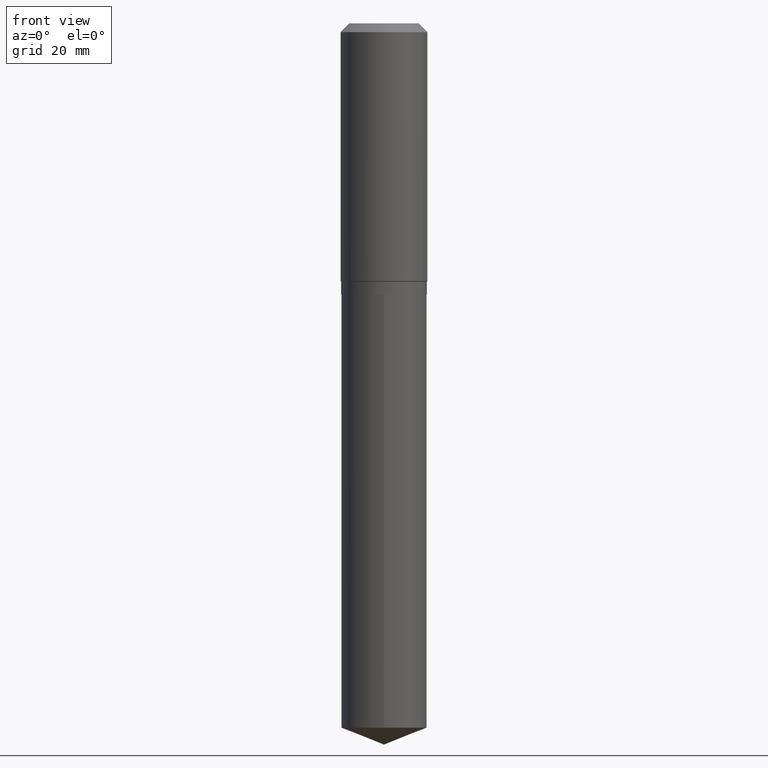
[diagram: clean part render]
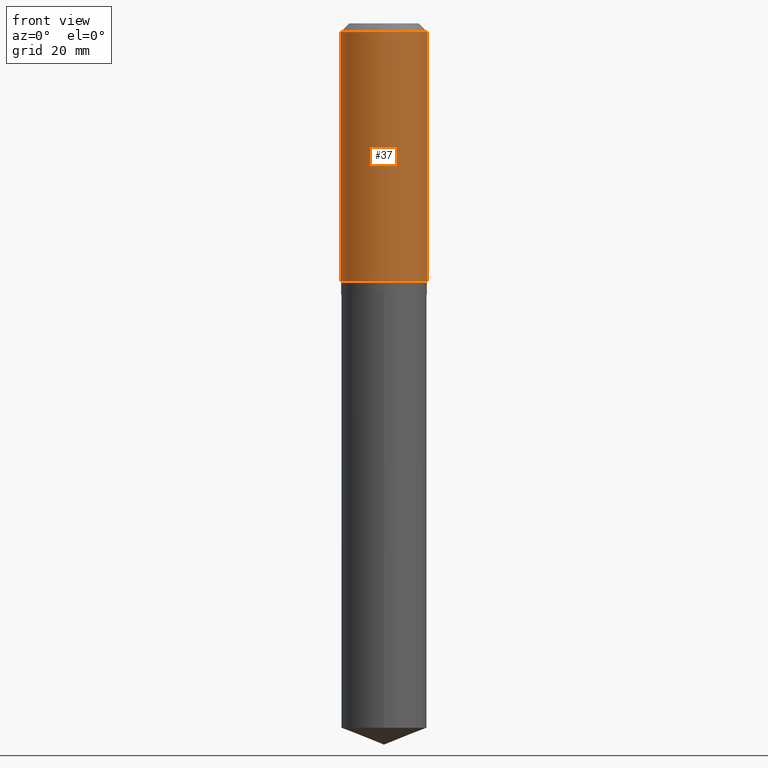
[diagram: same view with one face highlighted and labeled with its STEP entity id]
A machine part, front view. The second image highlights one B-rep face of the part: STEP entity #37.
In plain terms, the highlighted cylindrical surface (partial cylindrical patch) has radius 7.9997 mm, axis along (-0, 0, 1).
Its self-contained STEP definition (entity closure, byte-faithful):
#5 = LINE ( 'NONE', #118, #153 ) ;
#6 = DIRECTION ( 'NONE',  ( 1.000000000000000000, -6.982962677686264344E-15, 0.000000000000000000 ) ) ;
#32 = AXIS2_PLACEMENT_3D ( 'NONE', #427, #352, #171 ) ;
#37 = ADVANCED_FACE ( 'NONE', ( #310 ), #461, .T. ) ;
#49 = CARTESIAN_POINT ( 'NONE',  ( 0.000000000000000000, 0.000000000000000000, 0.000000000000000000 ) ) ;
#80 = DIRECTION ( 'NONE',  ( -2.445468806185136877E-29, 3.491481338843145188E-15, 1.000000000000000000 ) ) ;
#83 = CARTESIAN_POINT ( 'NONE',  ( 0.3149500000000002298, -8.731147384045044792E-15, -1.870799999999999352 ) ) ;
#97 = CARTESIAN_POINT ( 'NONE',  ( 0.3149500000000001743, -2.199284095337290660E-15, 1.535751875536930690E-29 ) ) ;
#112 = VECTOR ( 'NONE', #320, 39.37007874015748143 ) ;
#118 = CARTESIAN_POINT ( 'NONE',  ( -0.3149500000000001743, 2.237854346276436774E-15, -1.549218606675783237E-29 ) ) ;
#143 = ORIENTED_EDGE ( 'NONE', *, *, #416, .F. ) ;
#153 = VECTOR ( 'NONE', #80, 39.37007874015748143 ) ;
#171 = DIRECTION ( 'NONE',  ( 1.000000000000000000, -6.982962677686266711E-15, 0.000000000000000000 ) ) ;
#177 = LINE ( 'NONE', #97, #112 ) ;
#213 = DIRECTION ( 'NONE',  ( -2.445468806185136597E-29, 3.491481338843145583E-15, 1.000000000000000000 ) ) ;
#215 = ORIENTED_EDGE ( 'NONE', *, *, #422, .T. ) ;
#232 = DIRECTION ( 'NONE',  ( -2.445468806185136597E-29, 3.491481338843145583E-15, 1.000000000000000000 ) ) ;
#265 = VERTEX_POINT ( 'NONE', #334 ) ;
#266 = CARTESIAN_POINT ( 'NONE',  ( 4.574983042611151699E-29, -6.531863288707754922E-15, -1.870799999999999352 ) ) ;
#305 = EDGE_CURVE ( 'NONE', #265, #475, #354, .T. ) ;
#310 = FACE_OUTER_BOUND ( 'NONE', #356, .T. ) ;
#320 = DIRECTION ( 'NONE',  ( -2.445468806185136877E-29, 3.491481338843145188E-15, 1.000000000000000000 ) ) ;
#334 = CARTESIAN_POINT ( 'NONE',  ( -0.3149500000000002298, -4.294008942431317359E-15, -1.870799999999999352 ) ) ;
#340 = VERTEX_POINT ( 'NONE', #344 ) ;
#341 = CARTESIAN_POINT ( 'NONE',  ( -0.3149500000000000077, -1.138041502844306206E-15, -0.06299000000000036514 ) ) ;
#344 = CARTESIAN_POINT ( 'NONE',  ( 0.3149500000000000077, -2.419212504871020909E-15, -0.06299000000000036514 ) ) ;
#352 = DIRECTION ( 'NONE',  ( -2.445468806185136597E-29, 3.491481338843145583E-15, 1.000000000000000000 ) ) ;
#354 = CIRCLE ( 'NONE', #459, 0.3149500000000002298 ) ;
#355 = CIRCLE ( 'NONE', #32, 0.3149500000000000077 ) ;
#356 = EDGE_LOOP ( 'NONE', ( #405, #488, #215, #143 ) ) ;
#394 = VERTEX_POINT ( 'NONE', #341 ) ;
#396 = EDGE_CURVE ( 'NONE', #265, #394, #5, .T. ) ;
#405 = ORIENTED_EDGE ( 'NONE', *, *, #396, .F. ) ;
#415 = AXIS2_PLACEMENT_3D ( 'NONE', #49, #213, #464 ) ;
#416 = EDGE_CURVE ( 'NONE', #394, #340, #355, .T. ) ;
#422 = EDGE_CURVE ( 'NONE', #475, #340, #177, .T. ) ;
#427 = CARTESIAN_POINT ( 'NONE',  ( 1.540400801016026329E-30, -2.199284095337310135E-16, -0.06299000000000036514 ) ) ;
#459 = AXIS2_PLACEMENT_3D ( 'NONE', #266, #232, #6 ) ;
#461 = CYLINDRICAL_SURFACE ( 'NONE', #415, 0.3149500000000001743 ) ;
#464 = DIRECTION ( 'NONE',  ( 1.000000000000000000, -6.982962677686265922E-15, 4.876176775795935232E-29 ) ) ;
#475 = VERTEX_POINT ( 'NONE', #83 ) ;
#488 = ORIENTED_EDGE ( 'NONE', *, *, #305, .T. ) ;